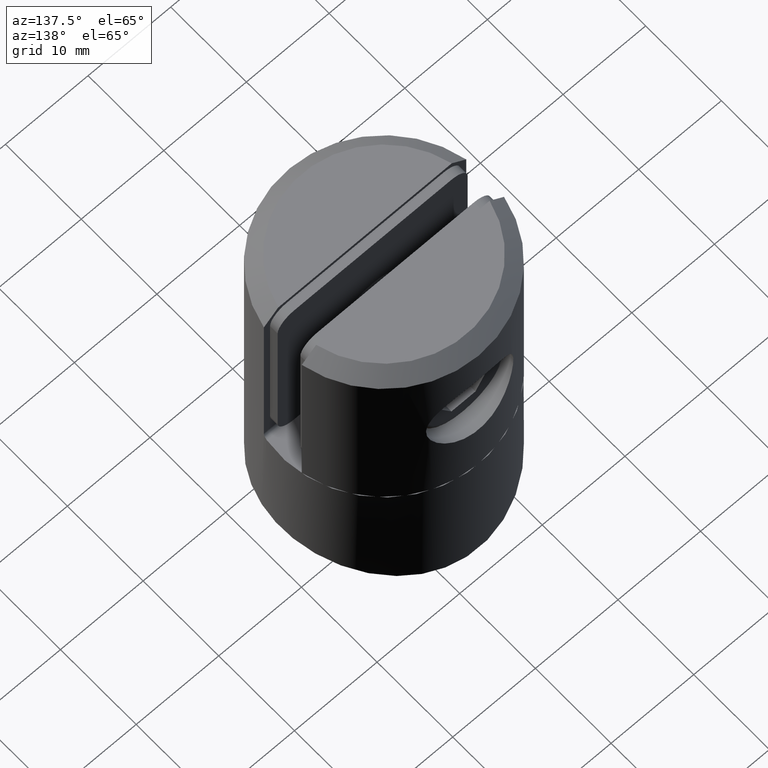
[diagram: clean part render]
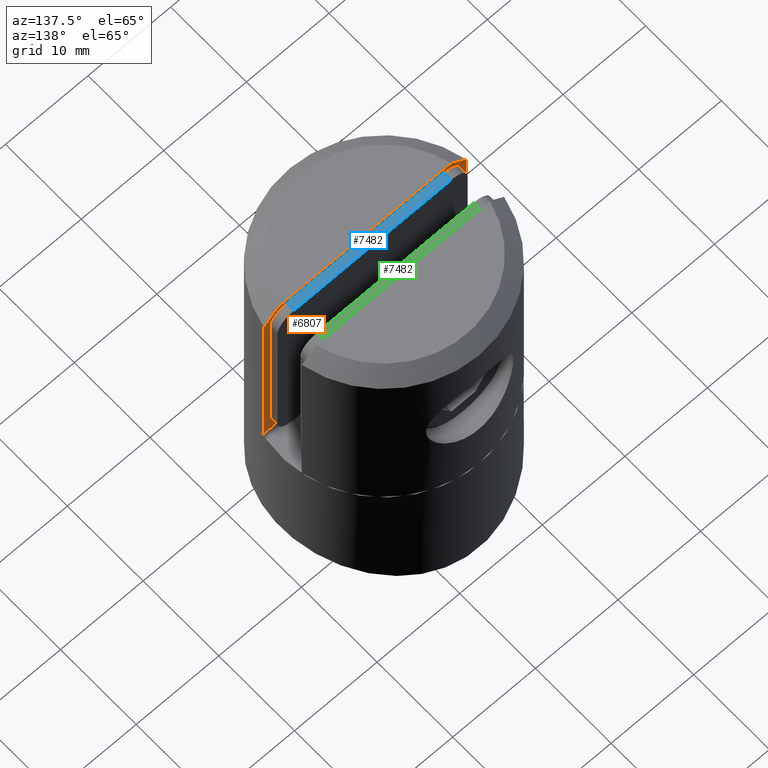
[diagram: same view with three faces highlighted in distinct colors, each labeled with its STEP entity id]
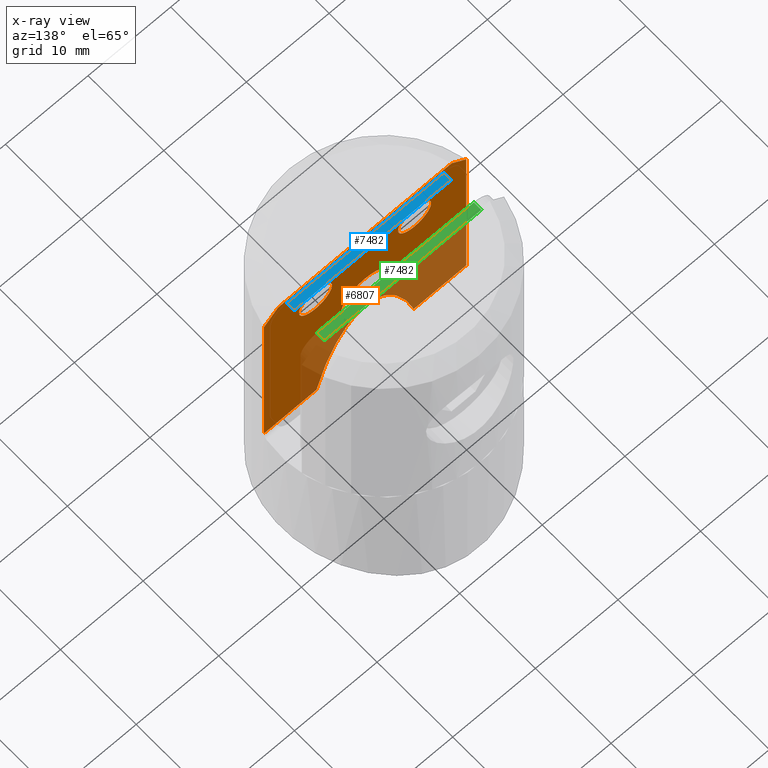
[diagram: x-ray of the same camera — body ghosted, the three highlighted faces saturated]
A machine part, auxiliary view with three faces highlighted in distinct colors.
The next image is the same camera in x-ray (body ghosted, the three faces saturated) — at least one of them is partly hidden behind the body in this view.
Their STEP definitions:

[orange] entity #6807 — the highlighted planar face has unit normal (0, -1, 0).
#71 = DIRECTION ( 'NONE',  ( -1.000000000000000000, 0.000000000000000000, 0.000000000000000000 ) ) ;
#113 = VERTEX_POINT ( 'NONE', #20992 ) ;
#294 = CARTESIAN_POINT ( 'NONE',  ( 12.24744871391589207, -2.500000000000003997, 39.59999999999999432 ) ) ;
#601 = ORIENTED_EDGE ( 'NONE', *, *, #4196, .T. ) ;
#716 = CARTESIAN_POINT ( 'NONE',  ( 6.000000000000000000, -2.500000000000003997, 36.79999999999999716 ) ) ;
#888 = CARTESIAN_POINT ( 'NONE',  ( -12.24744871391589207, -2.500000000000003997, 37.89999999999999858 ) ) ;
#1079 =( BOUNDED_CURVE ( )  B_SPLINE_CURVE ( 3, ( #7702, #11972, #1311, #22248 ),
 .UNSPECIFIED., .F., .F. ) 
 B_SPLINE_CURVE_WITH_KNOTS ( ( 4, 4 ),
 ( 5.345268941596490464, 7.221101672762682000 ),
 .UNSPECIFIED. ) 
 CURVE ( )  GEOMETRIC_REPRESENTATION_ITEM ( )  RATIONAL_B_SPLINE_CURVE ( ( 1.000000000000000000, 0.7276462662491731681, 0.7276462662491731681, 1.000000000000000000 ) ) 
 REPRESENTATION_ITEM ( '' )  );
#1311 = CARTESIAN_POINT ( 'NONE',  ( -2.696452303932709071, -2.500000000000003553, 28.85648753586291804 ) ) ;
#1363 = B_SPLINE_CURVE_WITH_KNOTS ( 'NONE', 3,
 ( #12836, #6043, #2161, #16501 ),
 .UNSPECIFIED., .F., .F.,
 ( 4, 4 ),
 ( 0.000000000000000000, 0.002433172722957547499 ),
 .UNSPECIFIED. ) ;
#1526 = DIRECTION ( 'NONE',  ( 0.000000000000000000, 0.000000000000000000, 1.000000000000000000 ) ) ;
#2161 = CARTESIAN_POINT ( 'NONE',  ( 11.66812187511647636, -2.500000000000003997, 38.46762205974326321 ) ) ;
#2190 = DIRECTION ( 'NONE',  ( -0.000000000000000000, 1.000000000000000000, -0.000000000000000000 ) ) ;
#2757 = VERTEX_POINT ( 'NONE', #7673 ) ;
#2829 = ORIENTED_EDGE ( 'NONE', *, *, #22985, .F. ) ;
#3151 = CARTESIAN_POINT ( 'NONE',  ( 12.24744871391589207, -2.500000000000003997, 15.50000000000000000 ) ) ;
#3379 = ORIENTED_EDGE ( 'NONE', *, *, #5294, .F. ) ;
#3900 = EDGE_LOOP ( 'NONE', ( #19063, #14999, #9955, #601, #10363, #6721, #9437, #7662 ) ) ;
#4196 = EDGE_CURVE ( 'NONE', #11412, #20267, #21488, .T. ) ;
#4197 = LINE ( 'NONE', #12467, #19599 ) ;
#5294 = EDGE_CURVE ( 'NONE', #8966, #8966, #14688, .T. ) ;
#5461 = VERTEX_POINT ( 'NONE', #5551 ) ;
#5551 = CARTESIAN_POINT ( 'NONE',  ( -5.886190353226848693, -2.500000000000003997, 15.50000000000000000 ) ) ;
#5923 = VECTOR ( 'NONE', #6098, 1000.000000000000000 ) ;
#5951 = CARTESIAN_POINT ( 'NONE',  ( -12.24744871391589207, -2.500000000000003997, 37.89999999999999858 ) ) ;
#6043 = CARTESIAN_POINT ( 'NONE',  ( 11.08800938267508585, -2.500000000000003997, 39.03444489547771212 ) ) ;
#6098 = DIRECTION ( 'NONE',  ( -1.000000000000000000, 0.000000000000000000, 0.000000000000000000 ) ) ;
#6173 = CARTESIAN_POINT ( 'NONE',  ( -10.50666455160723167, -2.500000000000003997, 39.59999999999999432 ) ) ;
#6194 = DIRECTION ( 'NONE',  ( 0.000000000000000000, -1.000000000000000000, 0.000000000000000000 ) ) ;
#6305 = EDGE_CURVE ( 'NONE', #14265, #18240, #12128, .T. ) ;
#6520 = CIRCLE ( 'NONE', #7855, 2.000000000000001776 ) ;
#6651 = AXIS2_PLACEMENT_3D ( 'NONE', #15018, #6194, #6889 ) ;
#6721 = ORIENTED_EDGE ( 'NONE', *, *, #12925, .T. ) ;
#6807 = ADVANCED_FACE ( 'NONE', ( #8479, #19089, #21045, #14352 ), #6984, .F. ) ;
#6889 = DIRECTION ( 'NONE',  ( 0.000000000000000000, -0.000000000000000000, -1.000000000000000000 ) ) ;
#6984 = PLANE ( 'NONE',  #6651 ) ;
#7029 = EDGE_CURVE ( 'NONE', #113, #113, #6520, .T. ) ;
#7032 = CARTESIAN_POINT ( 'NONE',  ( -10.50666455160723167, -2.500000000000003997, 39.59999999999999432 ) ) ;
#7045 = LINE ( 'NONE', #13192, #5923 ) ;
#7363 = CARTESIAN_POINT ( 'NONE',  ( -12.24744871391589207, -2.500000000000003997, 39.59999999999999432 ) ) ;
#7662 = ORIENTED_EDGE ( 'NONE', *, *, #21833, .T. ) ;
#7673 = CARTESIAN_POINT ( 'NONE',  ( 10.50666455160723878, -2.500000000000003997, 39.59999999999999432 ) ) ;
#7702 = CARTESIAN_POINT ( 'NONE',  ( 5.886190353226847805, -2.500000000000003997, 15.50000000000000000 ) ) ;
#7855 = AXIS2_PLACEMENT_3D ( 'NONE', #14371, #19450, #23068 ) ;
#8227 = EDGE_CURVE ( 'NONE', #2757, #20267, #7045, .T. ) ;
#8479 = FACE_BOUND ( 'NONE', #9345, .T. ) ;
#8624 = VECTOR ( 'NONE', #15705, 1000.000000000000000 ) ;
#8742 = CARTESIAN_POINT ( 'NONE',  ( 6.002203970564250035, -2.500000000000003997, 15.50000000000000000 ) ) ;
#8966 = VERTEX_POINT ( 'NONE', #716 ) ;
#9063 = DIRECTION ( 'NONE',  ( 0.000000000000000000, 0.000000000000000000, 1.000000000000000000 ) ) ;
#9298 = CARTESIAN_POINT ( 'NONE',  ( 0.000000000000000000, -2.500000000000003997, 27.59999999999999432 ) ) ;
#9345 = EDGE_LOOP ( 'NONE', ( #2829 ) ) ;
#9429 = EDGE_CURVE ( 'NONE', #5461, #18035, #4197, .T. ) ;
#9437 = ORIENTED_EDGE ( 'NONE', *, *, #6305, .T. ) ;
#9509 = ORIENTED_EDGE ( 'NONE', *, *, #7029, .F. ) ;
#9565 = CIRCLE ( 'NONE', #9667, 2.874999999999999112 ) ;
#9667 = AXIS2_PLACEMENT_3D ( 'NONE', #9298, #2190, #9063 ) ;
#9955 = ORIENTED_EDGE ( 'NONE', *, *, #14756, .F. ) ;
#10363 = ORIENTED_EDGE ( 'NONE', *, *, #8227, .F. ) ;
#10491 = CARTESIAN_POINT ( 'NONE',  ( 6.000000000000000000, -2.500000000000003997, 34.79999999999999716 ) ) ;
#11000 = VECTOR ( 'NONE', #14564, 1000.000000000000000 ) ;
#11123 = CARTESIAN_POINT ( 'NONE',  ( -12.24744871391589207, -2.500000000000003997, 15.50000000000000000 ) ) ;
#11412 = VERTEX_POINT ( 'NONE', #5951 ) ;
#11806 = VECTOR ( 'NONE', #13824, 1000.000000000000000 ) ;
#11972 = CARTESIAN_POINT ( 'NONE',  ( 2.696452303932710848, -2.500000000000003553, 28.85648753586292514 ) ) ;
#12128 = LINE ( 'NONE', #294, #11000 ) ;
#12467 = CARTESIAN_POINT ( 'NONE',  ( -12.24744871391588497, -2.500000000000003997, 15.50000000000000000 ) ) ;
#12836 = CARTESIAN_POINT ( 'NONE',  ( 10.50666455160723878, -2.500000000000003997, 39.59999999999999432 ) ) ;
#12925 = EDGE_CURVE ( 'NONE', #2757, #14265, #1363, .T. ) ;
#13192 = CARTESIAN_POINT ( 'NONE',  ( 12.24744871391589207, -2.500000000000003997, 39.59999999999999432 ) ) ;
#13351 = LINE ( 'NONE', #7363, #8624 ) ;
#13654 = CARTESIAN_POINT ( 'NONE',  ( -11.08800938267508762, -2.500000000000003997, 39.03444489547771212 ) ) ;
#13755 = VERTEX_POINT ( 'NONE', #19432 ) ;
#13824 = DIRECTION ( 'NONE',  ( -1.000000000000000000, 0.000000000000000000, 0.000000000000000000 ) ) ;
#13855 = VERTEX_POINT ( 'NONE', #14810 ) ;
#14265 = VERTEX_POINT ( 'NONE', #19960 ) ;
#14352 = FACE_OUTER_BOUND ( 'NONE', #3900, .T. ) ;
#14371 = CARTESIAN_POINT ( 'NONE',  ( -6.000000000000000000, -2.500000000000003997, 34.79999999999999716 ) ) ;
#14564 = DIRECTION ( 'NONE',  ( -0.000000000000000000, -0.000000000000000000, -1.000000000000000000 ) ) ;
#14688 = CIRCLE ( 'NONE', #22805, 2.000000000000001776 ) ;
#14756 = EDGE_CURVE ( 'NONE', #11412, #18035, #13351, .T. ) ;
#14810 = CARTESIAN_POINT ( 'NONE',  ( 5.886190353226847805, -2.500000000000003997, 15.50000000000000000 ) ) ;
#14999 = ORIENTED_EDGE ( 'NONE', *, *, #9429, .T. ) ;
#15018 = CARTESIAN_POINT ( 'NONE',  ( 12.24744871391589207, -2.500000000000003997, 39.59999999999999432 ) ) ;
#15705 = DIRECTION ( 'NONE',  ( -0.000000000000000000, -0.000000000000000000, -1.000000000000000000 ) ) ;
#16501 = CARTESIAN_POINT ( 'NONE',  ( 12.24744871391589207, -2.500000000000003997, 37.89999999999999858 ) ) ;
#16527 = EDGE_LOOP ( 'NONE', ( #9509 ) ) ;
#17666 = DIRECTION ( 'NONE',  ( 0.000000000000000000, 1.000000000000000000, 0.000000000000000000 ) ) ;
#18035 = VERTEX_POINT ( 'NONE', #11123 ) ;
#18093 = EDGE_CURVE ( 'NONE', #13855, #5461, #1079, .T. ) ;
#18240 = VERTEX_POINT ( 'NONE', #3151 ) ;
#19063 = ORIENTED_EDGE ( 'NONE', *, *, #18093, .T. ) ;
#19089 = FACE_BOUND ( 'NONE', #20411, .T. ) ;
#19432 = CARTESIAN_POINT ( 'NONE',  ( 0.000000000000000000, -2.500000000000003997, 30.47499999999999432 ) ) ;
#19450 = DIRECTION ( 'NONE',  ( 0.000000000000000000, 1.000000000000000000, 0.000000000000000000 ) ) ;
#19599 = VECTOR ( 'NONE', #71, 1000.000000000000000 ) ;
#19960 = CARTESIAN_POINT ( 'NONE',  ( 12.24744871391589207, -2.500000000000003997, 37.89999999999999858 ) ) ;
#20267 = VERTEX_POINT ( 'NONE', #7032 ) ;
#20411 = EDGE_LOOP ( 'NONE', ( #3379 ) ) ;
#20480 = LINE ( 'NONE', #8742, #11806 ) ;
#20992 = CARTESIAN_POINT ( 'NONE',  ( -6.000000000000000000, -2.500000000000003997, 36.79999999999999716 ) ) ;
#21045 = FACE_BOUND ( 'NONE', #16527, .T. ) ;
#21488 = B_SPLINE_CURVE_WITH_KNOTS ( 'NONE', 3,
 ( #888, #22522, #13654, #6173 ),
 .UNSPECIFIED., .F., .F.,
 ( 4, 4 ),
 ( 1.734723475976807094E-18, 0.002433172722957552270 ),
 .UNSPECIFIED. ) ;
#21833 = EDGE_CURVE ( 'NONE', #18240, #13855, #20480, .T. ) ;
#22248 = CARTESIAN_POINT ( 'NONE',  ( -5.886190353226848693, -2.500000000000003997, 15.50000000000000000 ) ) ;
#22522 = CARTESIAN_POINT ( 'NONE',  ( -11.66812187511647636, -2.500000000000003109, 38.46762205974326321 ) ) ;
#22805 = AXIS2_PLACEMENT_3D ( 'NONE', #10491, #17666, #1526 ) ;
#22985 = EDGE_CURVE ( 'NONE', #13755, #13755, #9565, .T. ) ;
#23068 = DIRECTION ( 'NONE',  ( 0.000000000000000000, 0.000000000000000000, 1.000000000000000000 ) ) ;

[blue] entity #7482 — the highlighted planar face has unit normal (-0, 0, -1).
#766 = VERTEX_POINT ( 'NONE', #11007 ) ;
#2017 = DIRECTION ( 'NONE',  ( 7.542275982507857147E-17, 0.000000000000000000, -1.000000000000000000 ) ) ;
#2373 = VECTOR ( 'NONE', #14899, 1000.000000000000000 ) ;
#2415 = EDGE_CURVE ( 'NONE', #4862, #766, #16148, .T. ) ;
#2614 = ORIENTED_EDGE ( 'NONE', *, *, #2415, .T. ) ;
#2783 = DIRECTION ( 'NONE',  ( 0.000000000000000000, -1.000000000000000000, 0.000000000000000000 ) ) ;
#3578 = EDGE_CURVE ( 'NONE', #21456, #7751, #10540, .T. ) ;
#3811 = VECTOR ( 'NONE', #2783, 1000.000000000000000 ) ;
#4673 = AXIS2_PLACEMENT_3D ( 'NONE', #10820, #2017, #23046 ) ;
#4862 = VERTEX_POINT ( 'NONE', #13850 ) ;
#4929 = CARTESIAN_POINT ( 'NONE',  ( -9.500000000000000000, 1.000000000000000000, 11.49999999999999645 ) ) ;
#5967 = EDGE_CURVE ( 'NONE', #7751, #4862, #17161, .T. ) ;
#6900 = ORIENTED_EDGE ( 'NONE', *, *, #3578, .T. ) ;
#7482 = ADVANCED_FACE ( 'NONE', ( #20736 ), #12696, .F. ) ;
#7751 = VERTEX_POINT ( 'NONE', #18600 ) ;
#8419 = VECTOR ( 'NONE', #18012, 1000.000000000000000 ) ;
#9103 = EDGE_LOOP ( 'NONE', ( #11814, #6900, #10885, #2614 ) ) ;
#9568 = EDGE_CURVE ( 'NONE', #21456, #766, #20405, .T. ) ;
#10540 = LINE ( 'NONE', #13315, #3811 ) ;
#10820 = CARTESIAN_POINT ( 'NONE',  ( -11.50000000000000000, 1.000000000000000000, 11.49999999999999645 ) ) ;
#10885 = ORIENTED_EDGE ( 'NONE', *, *, #5967, .T. ) ;
#11007 = CARTESIAN_POINT ( 'NONE',  ( 9.499999999999998224, 1.000000000000000000, 11.49999999999999822 ) ) ;
#11814 = ORIENTED_EDGE ( 'NONE', *, *, #9568, .F. ) ;
#12696 = PLANE ( 'NONE',  #4673 ) ;
#13315 = CARTESIAN_POINT ( 'NONE',  ( -9.500000000000000000, 1.000000000000000000, 11.49999999999999645 ) ) ;
#13850 = CARTESIAN_POINT ( 'NONE',  ( 9.499999999999998224, 0.000000000000000000, 11.49999999999999822 ) ) ;
#14899 = DIRECTION ( 'NONE',  ( 1.000000000000000000, 0.000000000000000000, 7.542275982507857147E-17 ) ) ;
#15649 = CARTESIAN_POINT ( 'NONE',  ( 9.499999999999998224, 1.000000000000000000, 11.49999999999999822 ) ) ;
#16148 = LINE ( 'NONE', #15649, #20598 ) ;
#16508 = CARTESIAN_POINT ( 'NONE',  ( -11.50000000000000000, 1.000000000000000000, 11.49999999999999645 ) ) ;
#17161 = LINE ( 'NONE', #20209, #2373 ) ;
#18012 = DIRECTION ( 'NONE',  ( 1.000000000000000000, 0.000000000000000000, 7.542275982507857147E-17 ) ) ;
#18600 = CARTESIAN_POINT ( 'NONE',  ( -9.500000000000000000, 0.000000000000000000, 11.49999999999999645 ) ) ;
#20209 = CARTESIAN_POINT ( 'NONE',  ( -11.50000000000000000, 0.000000000000000000, 11.49999999999999645 ) ) ;
#20405 = LINE ( 'NONE', #16508, #8419 ) ;
#20598 = VECTOR ( 'NONE', #22403, 1000.000000000000000 ) ;
#20736 = FACE_OUTER_BOUND ( 'NONE', #9103, .T. ) ;
#21456 = VERTEX_POINT ( 'NONE', #4929 ) ;
#22403 = DIRECTION ( 'NONE',  ( -0.000000000000000000, 1.000000000000000000, -0.000000000000000000 ) ) ;
#23046 = DIRECTION ( 'NONE',  ( -1.000000000000000000, 0.000000000000000000, -7.542275982507857147E-17 ) ) ;

[green] entity #7482 — the highlighted planar face has unit normal (0, 0, -1).
#766 = VERTEX_POINT ( 'NONE', #11007 ) ;
#2017 = DIRECTION ( 'NONE',  ( 7.542275982507857147E-17, 0.000000000000000000, -1.000000000000000000 ) ) ;
#2373 = VECTOR ( 'NONE', #14899, 1000.000000000000000 ) ;
#2415 = EDGE_CURVE ( 'NONE', #4862, #766, #16148, .T. ) ;
#2614 = ORIENTED_EDGE ( 'NONE', *, *, #2415, .T. ) ;
#2783 = DIRECTION ( 'NONE',  ( 0.000000000000000000, -1.000000000000000000, 0.000000000000000000 ) ) ;
#3578 = EDGE_CURVE ( 'NONE', #21456, #7751, #10540, .T. ) ;
#3811 = VECTOR ( 'NONE', #2783, 1000.000000000000000 ) ;
#4673 = AXIS2_PLACEMENT_3D ( 'NONE', #10820, #2017, #23046 ) ;
#4862 = VERTEX_POINT ( 'NONE', #13850 ) ;
#4929 = CARTESIAN_POINT ( 'NONE',  ( -9.500000000000000000, 1.000000000000000000, 11.49999999999999645 ) ) ;
#5967 = EDGE_CURVE ( 'NONE', #7751, #4862, #17161, .T. ) ;
#6900 = ORIENTED_EDGE ( 'NONE', *, *, #3578, .T. ) ;
#7482 = ADVANCED_FACE ( 'NONE', ( #20736 ), #12696, .F. ) ;
#7751 = VERTEX_POINT ( 'NONE', #18600 ) ;
#8419 = VECTOR ( 'NONE', #18012, 1000.000000000000000 ) ;
#9103 = EDGE_LOOP ( 'NONE', ( #11814, #6900, #10885, #2614 ) ) ;
#9568 = EDGE_CURVE ( 'NONE', #21456, #766, #20405, .T. ) ;
#10540 = LINE ( 'NONE', #13315, #3811 ) ;
#10820 = CARTESIAN_POINT ( 'NONE',  ( -11.50000000000000000, 1.000000000000000000, 11.49999999999999645 ) ) ;
#10885 = ORIENTED_EDGE ( 'NONE', *, *, #5967, .T. ) ;
#11007 = CARTESIAN_POINT ( 'NONE',  ( 9.499999999999998224, 1.000000000000000000, 11.49999999999999822 ) ) ;
#11814 = ORIENTED_EDGE ( 'NONE', *, *, #9568, .F. ) ;
#12696 = PLANE ( 'NONE',  #4673 ) ;
#13315 = CARTESIAN_POINT ( 'NONE',  ( -9.500000000000000000, 1.000000000000000000, 11.49999999999999645 ) ) ;
#13850 = CARTESIAN_POINT ( 'NONE',  ( 9.499999999999998224, 0.000000000000000000, 11.49999999999999822 ) ) ;
#14899 = DIRECTION ( 'NONE',  ( 1.000000000000000000, 0.000000000000000000, 7.542275982507857147E-17 ) ) ;
#15649 = CARTESIAN_POINT ( 'NONE',  ( 9.499999999999998224, 1.000000000000000000, 11.49999999999999822 ) ) ;
#16148 = LINE ( 'NONE', #15649, #20598 ) ;
#16508 = CARTESIAN_POINT ( 'NONE',  ( -11.50000000000000000, 1.000000000000000000, 11.49999999999999645 ) ) ;
#17161 = LINE ( 'NONE', #20209, #2373 ) ;
#18012 = DIRECTION ( 'NONE',  ( 1.000000000000000000, 0.000000000000000000, 7.542275982507857147E-17 ) ) ;
#18600 = CARTESIAN_POINT ( 'NONE',  ( -9.500000000000000000, 0.000000000000000000, 11.49999999999999645 ) ) ;
#20209 = CARTESIAN_POINT ( 'NONE',  ( -11.50000000000000000, 0.000000000000000000, 11.49999999999999645 ) ) ;
#20405 = LINE ( 'NONE', #16508, #8419 ) ;
#20598 = VECTOR ( 'NONE', #22403, 1000.000000000000000 ) ;
#20736 = FACE_OUTER_BOUND ( 'NONE', #9103, .T. ) ;
#21456 = VERTEX_POINT ( 'NONE', #4929 ) ;
#22403 = DIRECTION ( 'NONE',  ( -0.000000000000000000, 1.000000000000000000, -0.000000000000000000 ) ) ;
#23046 = DIRECTION ( 'NONE',  ( -1.000000000000000000, 0.000000000000000000, -7.542275982507857147E-17 ) ) ;